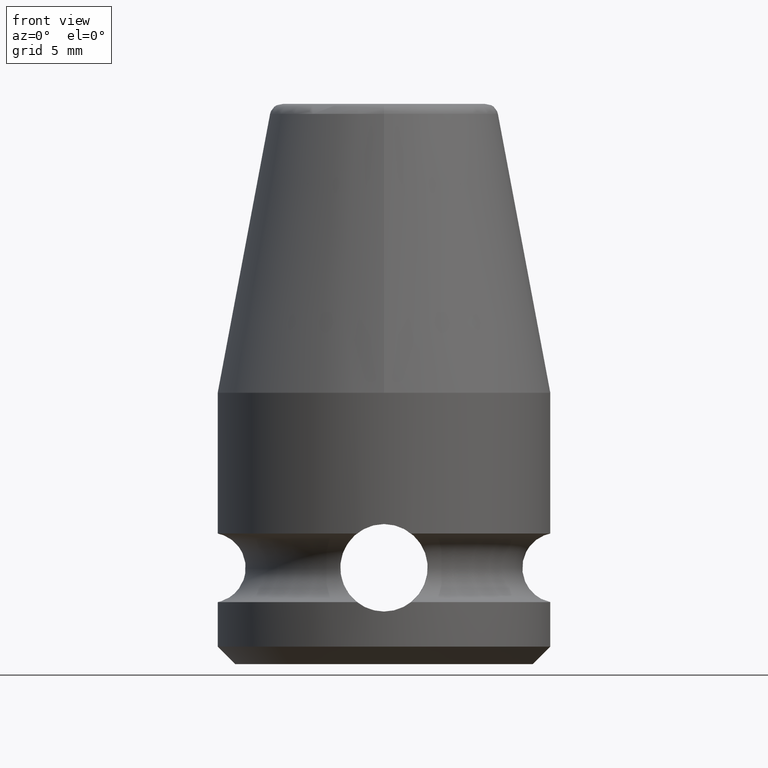
[diagram: clean part render]
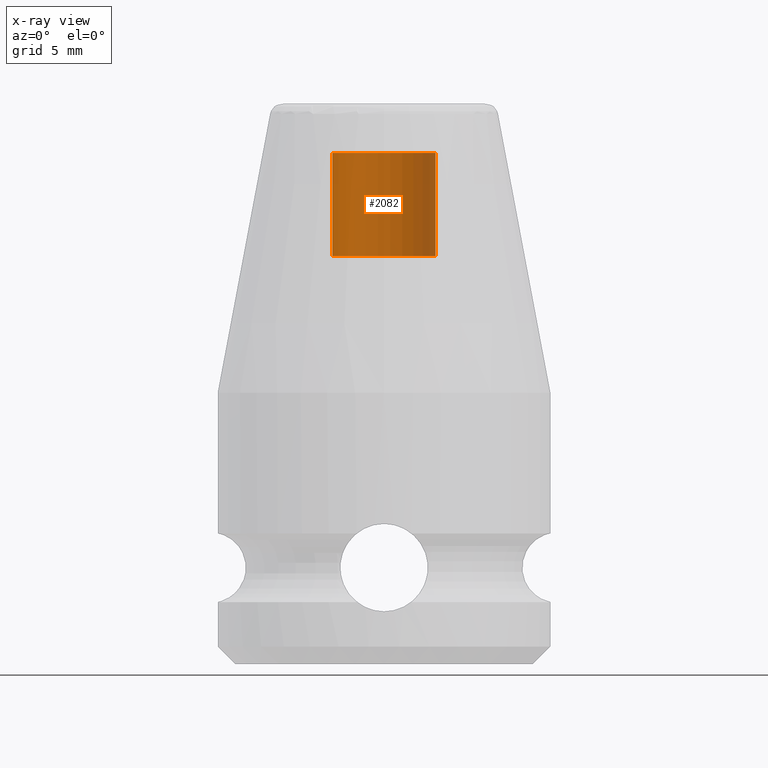
[diagram: x-ray — body ghosted, one internal face saturated and labeled with its STEP entity id]
A machine part, front view, then the same camera in x-ray: the body is ghosted and one INTERNAL B-rep face — a face not visible from any outside direction — is saturated and labeled: STEP entity #2082.
In plain terms, the highlighted cylindrical surface (partial cylindrical patch) has radius 2.95 mm, axis along (0, 0, 1).
Its self-contained STEP definition (entity closure, byte-faithful):
#2020=CARTESIAN_POINT('',(0.E0,0.E0,2.33E1));
#2021=DIRECTION('',(0.E0,0.E0,1.E0));
#2022=DIRECTION('',(1.E0,0.E0,0.E0));
#2023=AXIS2_PLACEMENT_3D('',#2020,#2021,#2022);
#2030=DIRECTION('',(0.E0,0.E0,1.E0));
#2031=VECTOR('',#2030,5.9E0);
#2032=CARTESIAN_POINT('',(2.95E0,0.E0,2.33E1));
#2033=LINE('',#2032,#2031);
#2034=DIRECTION('',(0.E0,0.E0,1.E0));
#2035=VECTOR('',#2034,5.9E0);
#2036=CARTESIAN_POINT('',(-2.95E0,0.E0,2.33E1));
#2037=LINE('',#2036,#2035);
#2038=CARTESIAN_POINT('',(0.E0,0.E0,2.92E1));
#2039=DIRECTION('',(0.E0,0.E0,1.E0));
#2040=DIRECTION('',(1.E0,0.E0,0.E0));
#2041=AXIS2_PLACEMENT_3D('',#2038,#2039,#2040);
#2048=CARTESIAN_POINT('',(2.95E0,0.E0,2.33E1));
#2049=CARTESIAN_POINT('',(-2.95E0,0.E0,2.33E1));
#2050=VERTEX_POINT('',#2048);
#2051=VERTEX_POINT('',#2049);
#2052=CARTESIAN_POINT('',(2.95E0,0.E0,2.92E1));
#2053=CARTESIAN_POINT('',(-2.95E0,0.E0,2.92E1));
#2054=VERTEX_POINT('',#2052);
#2055=VERTEX_POINT('',#2053);
#2068=CARTESIAN_POINT('',(0.E0,0.E0,2.33E1));
#2069=DIRECTION('',(0.E0,0.E0,1.E0));
#2070=DIRECTION('',(1.E0,0.E0,0.E0));
#2071=AXIS2_PLACEMENT_3D('',#2068,#2069,#2070);
#2072=CYLINDRICAL_SURFACE('',#2071,2.95E0);
#2073=ORIENTED_EDGE('',*,*,#2061,.F.);
#2075=ORIENTED_EDGE('',*,*,#2074,.T.);
#2077=ORIENTED_EDGE('',*,*,#2076,.T.);
#2079=ORIENTED_EDGE('',*,*,#2078,.F.);
#2080=EDGE_LOOP('',(#2073,#2075,#2077,#2079));
#2081=FACE_OUTER_BOUND('',#2080,.F.);
#2082=ADVANCED_FACE('',(#2081),#2072,.T.);
#2024=CIRCLE('',#2023,2.95E0);
#2042=CIRCLE('',#2041,2.95E0);
#2061=EDGE_CURVE('',#2050,#2051,#2024,.T.);
#2074=EDGE_CURVE('',#2050,#2054,#2033,.T.);
#2076=EDGE_CURVE('',#2054,#2055,#2042,.T.);
#2078=EDGE_CURVE('',#2051,#2055,#2037,.T.);